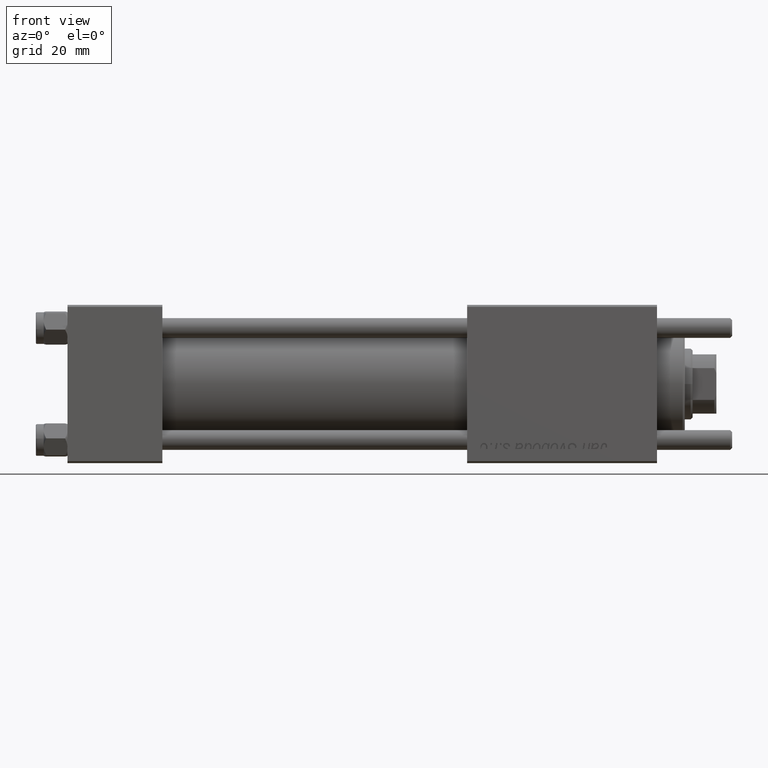
[diagram: clean part render]
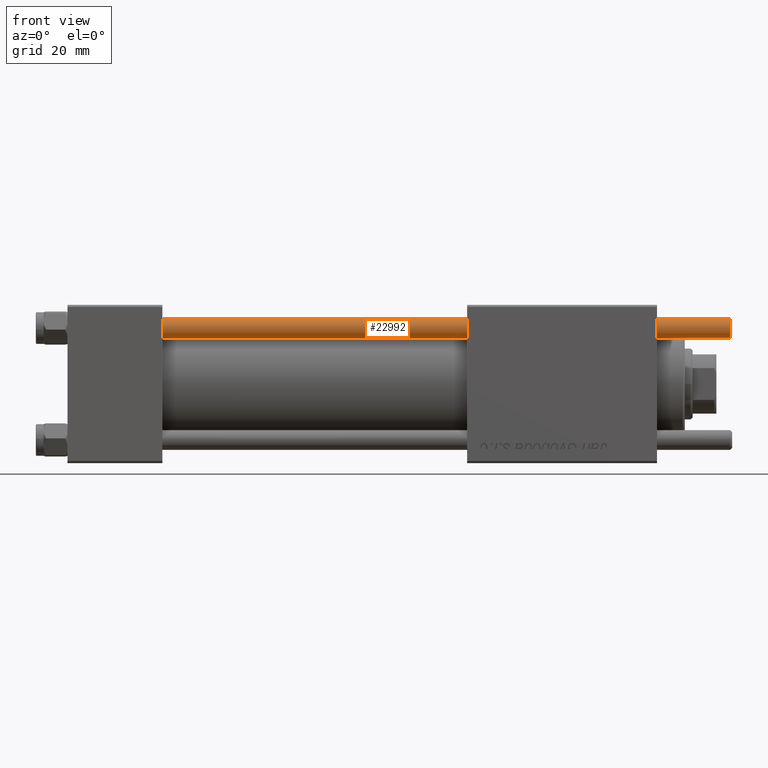
[diagram: same view with one face highlighted and labeled with its STEP entity id]
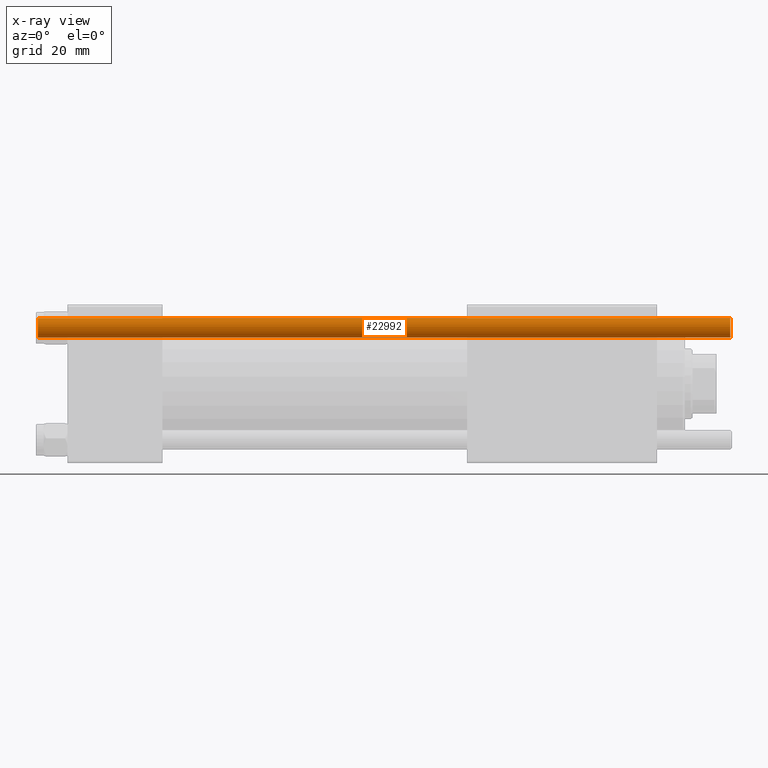
[diagram: x-ray of the same camera — body ghosted, the highlighted face saturated]
A machine part, front view. The second image highlights one B-rep face of the part: STEP entity #22992.
The next image is the same camera in x-ray: the body ghosted, the highlighted face saturated — about 0% of this face is hidden behind the body in this view.
In plain terms, the highlighted cylindrical surface (edge-blend (fillet) strip) has radius 2.5 mm, axis along (-1, 0, -0).
Its self-contained STEP definition (entity closure, byte-faithful):
#4291 = CARTESIAN_POINT ( 'NONE',  ( 0.000000000000000000, 0.000000000000000000, 176.0000000000000000 ) ) ;
#5598 = LINE ( 'NONE', #27959, #52689 ) ;
#9140 = CYLINDRICAL_SURFACE ( 'NONE', #28889, 2.500000000000000000 ) ;
#9522 = CARTESIAN_POINT ( 'NONE',  ( 2.500000000000000000, 3.061616997868383141E-16, 175.5000000000000000 ) ) ;
#10151 = DIRECTION ( 'NONE',  ( 1.000000000000000000, 0.000000000000000000, 0.000000000000000000 ) ) ;
#10587 = CARTESIAN_POINT ( 'NONE',  ( -2.500000000000000000, 0.000000000000000000, 175.5000000000000000 ) ) ;
#11954 = DIRECTION ( 'NONE',  ( 1.000000000000000000, 0.000000000000000000, 0.000000000000000000 ) ) ;
#13597 = DIRECTION ( 'NONE',  ( -0.000000000000000000, -0.000000000000000000, 1.000000000000000000 ) ) ;
#14207 = ORIENTED_EDGE ( 'NONE', *, *, #54876, .T. ) ;
#14906 = CARTESIAN_POINT ( 'NONE',  ( 2.500000000000000000, 3.061616997868383141E-16, 0.5000000000000281997 ) ) ;
#16967 = EDGE_CURVE ( 'NONE', #43305, #31317, #22296, .T. ) ;
#17614 = EDGE_LOOP ( 'NONE', ( #21029, #14207, #45179, #43617 ) ) ;
#19217 = LINE ( 'NONE', #32702, #21486 ) ;
#21029 = ORIENTED_EDGE ( 'NONE', *, *, #16967, .T. ) ;
#21374 = AXIS2_PLACEMENT_3D ( 'NONE', #44552, #13597, #10151 ) ;
#21486 = VECTOR ( 'NONE', #37559, 1000.000000000000000 ) ;
#21763 = DIRECTION ( 'NONE',  ( -0.000000000000000000, -0.000000000000000000, -1.000000000000000000 ) ) ;
#22296 = CIRCLE ( 'NONE', #36963, 2.500000000000000000 ) ;
#22992 = ADVANCED_FACE ( 'NONE', ( #51612 ), #9140, .T. ) ;
#25952 = EDGE_CURVE ( 'NONE', #43305, #50612, #19217, .T. ) ;
#27959 = CARTESIAN_POINT ( 'NONE',  ( 2.500000000000000000, 3.061616997868383141E-16, 176.0000000000000000 ) ) ;
#28889 = AXIS2_PLACEMENT_3D ( 'NONE', #4291, #21763, #38680 ) ;
#29182 = DIRECTION ( 'NONE',  ( 0.000000000000000000, 0.000000000000000000, -1.000000000000000000 ) ) ;
#31317 = VERTEX_POINT ( 'NONE', #9522 ) ;
#32373 = VERTEX_POINT ( 'NONE', #14906 ) ;
#32702 = CARTESIAN_POINT ( 'NONE',  ( -2.500000000000000000, 0.000000000000000000, 176.0000000000000000 ) ) ;
#36963 = AXIS2_PLACEMENT_3D ( 'NONE', #37765, #29182, #11954 ) ;
#37559 = DIRECTION ( 'NONE',  ( -0.000000000000000000, -0.000000000000000000, -1.000000000000000000 ) ) ;
#37765 = CARTESIAN_POINT ( 'NONE',  ( 0.000000000000000000, 0.000000000000000000, 175.5000000000000000 ) ) ;
#38680 = DIRECTION ( 'NONE',  ( -1.000000000000000000, 0.000000000000000000, 0.000000000000000000 ) ) ;
#43305 = VERTEX_POINT ( 'NONE', #10587 ) ;
#43617 = ORIENTED_EDGE ( 'NONE', *, *, #25952, .F. ) ;
#44552 = CARTESIAN_POINT ( 'NONE',  ( 0.000000000000000000, 0.000000000000000000, 0.5000000000000281997 ) ) ;
#44952 = EDGE_CURVE ( 'NONE', #32373, #50612, #46110, .T. ) ;
#45179 = ORIENTED_EDGE ( 'NONE', *, *, #44952, .T. ) ;
#46110 = CIRCLE ( 'NONE', #21374, 2.500000000000000000 ) ;
#50492 = CARTESIAN_POINT ( 'NONE',  ( -2.500000000000000000, 0.000000000000000000, 0.5000000000000281997 ) ) ;
#50612 = VERTEX_POINT ( 'NONE', #50492 ) ;
#51612 = FACE_OUTER_BOUND ( 'NONE', #17614, .T. ) ;
#52689 = VECTOR ( 'NONE', #54637, 1000.000000000000000 ) ;
#54637 = DIRECTION ( 'NONE',  ( -0.000000000000000000, -0.000000000000000000, -1.000000000000000000 ) ) ;
#54876 = EDGE_CURVE ( 'NONE', #31317, #32373, #5598, .T. ) ;